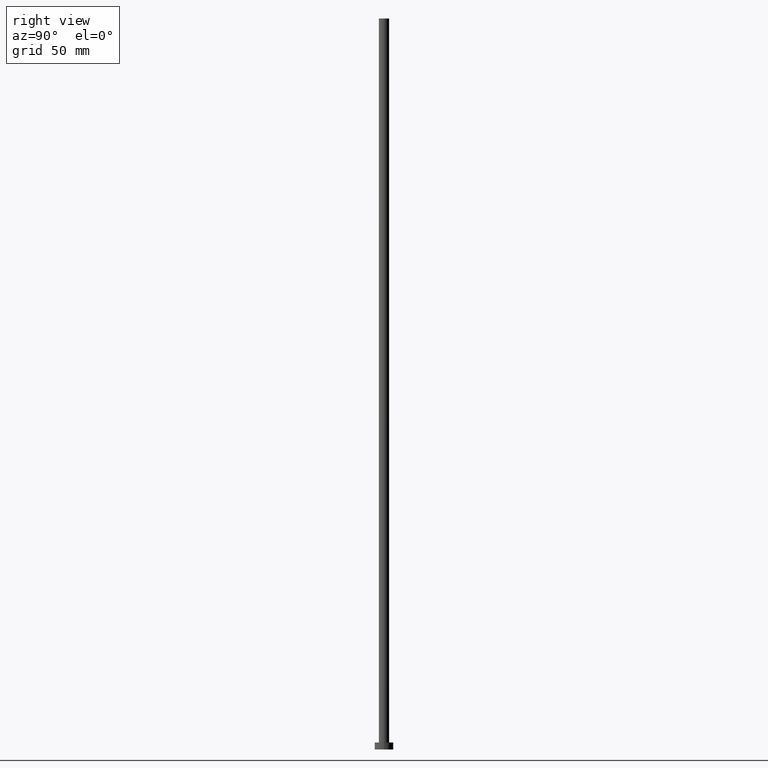
[diagram: clean part render]
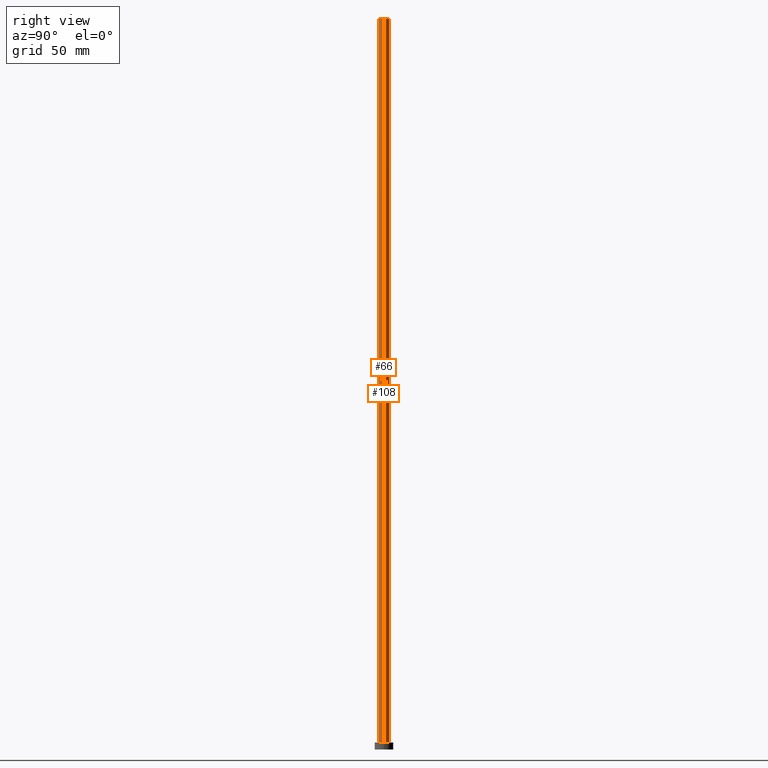
[diagram: same view with one multi-face feature highlighted, each face labeled with its STEP entity id]
A machine part, right view. The highlighted faces form ONE feature: a constant-radius fillet chain: 2 tangent blend faces with common blend radius 2.25 mm. The faces share edges in the B-rep.
Their STEP definitions:
[1] entity #108 (Cylinder):
#3 = VERTEX_POINT ( 'NONE', #112 ) ;
#10 = VECTOR ( 'NONE', #14, 1000.000000000000000 ) ;
#11 = DIRECTION ( 'NONE',  ( 0.000000000000000000, 0.000000000000000000, 1.000000000000000000 ) ) ;
#12 = CARTESIAN_POINT ( 'NONE',  ( -2.250000000000000000, 0.000000000000000000, 315.0000000000000000 ) ) ;
#14 = DIRECTION ( 'NONE',  ( -0.000000000000000000, -0.000000000000000000, -1.000000000000000000 ) ) ;
#15 = AXIS2_PLACEMENT_3D ( 'NONE', #137, #235, #30 ) ;
#17 = EDGE_LOOP ( 'NONE', ( #83, #107, #42, #129 ) ) ;
#23 = EDGE_CURVE ( 'NONE', #79, #3, #91, .T. ) ;
#30 = DIRECTION ( 'NONE',  ( 1.000000000000000000, 0.000000000000000000, 0.000000000000000000 ) ) ;
#40 = VECTOR ( 'NONE', #167, 1000.000000000000000 ) ;
#42 = ORIENTED_EDGE ( 'NONE', *, *, #184, .T. ) ;
#44 = VERTEX_POINT ( 'NONE', #170 ) ;
#56 = CARTESIAN_POINT ( 'NONE',  ( 0.000000000000000000, 0.000000000000000000, 3.000000000000000000 ) ) ;
#59 = EDGE_CURVE ( 'NONE', #44, #73, #152, .T. ) ;
#72 = CARTESIAN_POINT ( 'NONE',  ( -2.250000000000000000, 0.000000000000000000, 3.000000000000000000 ) ) ;
#73 = VERTEX_POINT ( 'NONE', #72 ) ;
#79 = VERTEX_POINT ( 'NONE', #232 ) ;
#83 = ORIENTED_EDGE ( 'NONE', *, *, #150, .F. ) ;
#91 = LINE ( 'NONE', #133, #40 ) ;
#98 = CIRCLE ( 'NONE', #15, 2.250000000000000000 ) ;
#100 = DIRECTION ( 'NONE',  ( -1.000000000000000000, 0.000000000000000000, 0.000000000000000000 ) ) ;
#107 = ORIENTED_EDGE ( 'NONE', *, *, #23, .T. ) ;
#108 = ADVANCED_FACE ( 'NONE', ( #233 ), #117, .T. ) ;
#110 = CIRCLE ( 'NONE', #251, 2.250000000000000000 ) ;
#112 = CARTESIAN_POINT ( 'NONE',  ( 2.250000000000000000, 2.755455298081544285E-16, 3.000000000000000000 ) ) ;
#117 = CYLINDRICAL_SURFACE ( 'NONE', #148, 2.250000000000000000 ) ;
#129 = ORIENTED_EDGE ( 'NONE', *, *, #59, .F. ) ;
#133 = CARTESIAN_POINT ( 'NONE',  ( 2.250000000000000000, 2.755455298081544285E-16, 315.0000000000000000 ) ) ;
#137 = CARTESIAN_POINT ( 'NONE',  ( 0.000000000000000000, 0.000000000000000000, 315.0000000000000000 ) ) ;
#138 = DIRECTION ( 'NONE',  ( 1.000000000000000000, 0.000000000000000000, 0.000000000000000000 ) ) ;
#139 = CARTESIAN_POINT ( 'NONE',  ( 0.000000000000000000, 0.000000000000000000, 315.0000000000000000 ) ) ;
#148 = AXIS2_PLACEMENT_3D ( 'NONE', #139, #172, #100 ) ;
#150 = EDGE_CURVE ( 'NONE', #79, #44, #98, .T. ) ;
#152 = LINE ( 'NONE', #12, #10 ) ;
#167 = DIRECTION ( 'NONE',  ( -0.000000000000000000, -0.000000000000000000, -1.000000000000000000 ) ) ;
#170 = CARTESIAN_POINT ( 'NONE',  ( -2.250000000000000000, 0.000000000000000000, 315.0000000000000000 ) ) ;
#172 = DIRECTION ( 'NONE',  ( -0.000000000000000000, -0.000000000000000000, -1.000000000000000000 ) ) ;
#184 = EDGE_CURVE ( 'NONE', #3, #73, #110, .T. ) ;
#232 = CARTESIAN_POINT ( 'NONE',  ( 2.250000000000000000, 2.755455298081544285E-16, 315.0000000000000000 ) ) ;
#233 = FACE_OUTER_BOUND ( 'NONE', #17, .T. ) ;
#235 = DIRECTION ( 'NONE',  ( 0.000000000000000000, 0.000000000000000000, 1.000000000000000000 ) ) ;
#251 = AXIS2_PLACEMENT_3D ( 'NONE', #56, #11, #138 ) ;
[2] entity #66 (Cylinder):
#3 = VERTEX_POINT ( 'NONE', #112 ) ;
#10 = VECTOR ( 'NONE', #14, 1000.000000000000000 ) ;
#12 = CARTESIAN_POINT ( 'NONE',  ( -2.250000000000000000, 0.000000000000000000, 315.0000000000000000 ) ) ;
#13 = FACE_OUTER_BOUND ( 'NONE', #109, .T. ) ;
#14 = DIRECTION ( 'NONE',  ( -0.000000000000000000, -0.000000000000000000, -1.000000000000000000 ) ) ;
#23 = EDGE_CURVE ( 'NONE', #79, #3, #91, .T. ) ;
#31 = CIRCLE ( 'NONE', #69, 2.250000000000000000 ) ;
#40 = VECTOR ( 'NONE', #167, 1000.000000000000000 ) ;
#44 = VERTEX_POINT ( 'NONE', #170 ) ;
#53 = DIRECTION ( 'NONE',  ( 0.000000000000000000, 0.000000000000000000, 1.000000000000000000 ) ) ;
#59 = EDGE_CURVE ( 'NONE', #44, #73, #152, .T. ) ;
#63 = ORIENTED_EDGE ( 'NONE', *, *, #23, .F. ) ;
#66 = ADVANCED_FACE ( 'NONE', ( #13 ), #70, .T. ) ;
#69 = AXIS2_PLACEMENT_3D ( 'NONE', #71, #194, #218 ) ;
#70 = CYLINDRICAL_SURFACE ( 'NONE', #118, 2.250000000000000000 ) ;
#71 = CARTESIAN_POINT ( 'NONE',  ( 0.000000000000000000, 0.000000000000000000, 315.0000000000000000 ) ) ;
#72 = CARTESIAN_POINT ( 'NONE',  ( -2.250000000000000000, 0.000000000000000000, 3.000000000000000000 ) ) ;
#73 = VERTEX_POINT ( 'NONE', #72 ) ;
#79 = VERTEX_POINT ( 'NONE', #232 ) ;
#91 = LINE ( 'NONE', #133, #40 ) ;
#109 = EDGE_LOOP ( 'NONE', ( #63, #127, #224, #164 ) ) ;
#112 = CARTESIAN_POINT ( 'NONE',  ( 2.250000000000000000, 2.755455298081544285E-16, 3.000000000000000000 ) ) ;
#113 = EDGE_CURVE ( 'NONE', #73, #3, #175, .T. ) ;
#118 = AXIS2_PLACEMENT_3D ( 'NONE', #192, #158, #215 ) ;
#119 = CARTESIAN_POINT ( 'NONE',  ( 0.000000000000000000, 0.000000000000000000, 3.000000000000000000 ) ) ;
#127 = ORIENTED_EDGE ( 'NONE', *, *, #168, .F. ) ;
#133 = CARTESIAN_POINT ( 'NONE',  ( 2.250000000000000000, 2.755455298081544285E-16, 315.0000000000000000 ) ) ;
#152 = LINE ( 'NONE', #12, #10 ) ;
#158 = DIRECTION ( 'NONE',  ( -0.000000000000000000, -0.000000000000000000, -1.000000000000000000 ) ) ;
#164 = ORIENTED_EDGE ( 'NONE', *, *, #113, .T. ) ;
#167 = DIRECTION ( 'NONE',  ( -0.000000000000000000, -0.000000000000000000, -1.000000000000000000 ) ) ;
#168 = EDGE_CURVE ( 'NONE', #44, #79, #31, .T. ) ;
#170 = CARTESIAN_POINT ( 'NONE',  ( -2.250000000000000000, 0.000000000000000000, 315.0000000000000000 ) ) ;
#175 = CIRCLE ( 'NONE', #211, 2.250000000000000000 ) ;
#177 = DIRECTION ( 'NONE',  ( 1.000000000000000000, 0.000000000000000000, 0.000000000000000000 ) ) ;
#192 = CARTESIAN_POINT ( 'NONE',  ( 0.000000000000000000, 0.000000000000000000, 315.0000000000000000 ) ) ;
#194 = DIRECTION ( 'NONE',  ( 0.000000000000000000, 0.000000000000000000, 1.000000000000000000 ) ) ;
#211 = AXIS2_PLACEMENT_3D ( 'NONE', #119, #53, #177 ) ;
#215 = DIRECTION ( 'NONE',  ( -1.000000000000000000, 0.000000000000000000, 0.000000000000000000 ) ) ;
#218 = DIRECTION ( 'NONE',  ( 1.000000000000000000, 0.000000000000000000, 0.000000000000000000 ) ) ;
#224 = ORIENTED_EDGE ( 'NONE', *, *, #59, .T. ) ;
#232 = CARTESIAN_POINT ( 'NONE',  ( 2.250000000000000000, 2.755455298081544285E-16, 315.0000000000000000 ) ) ;